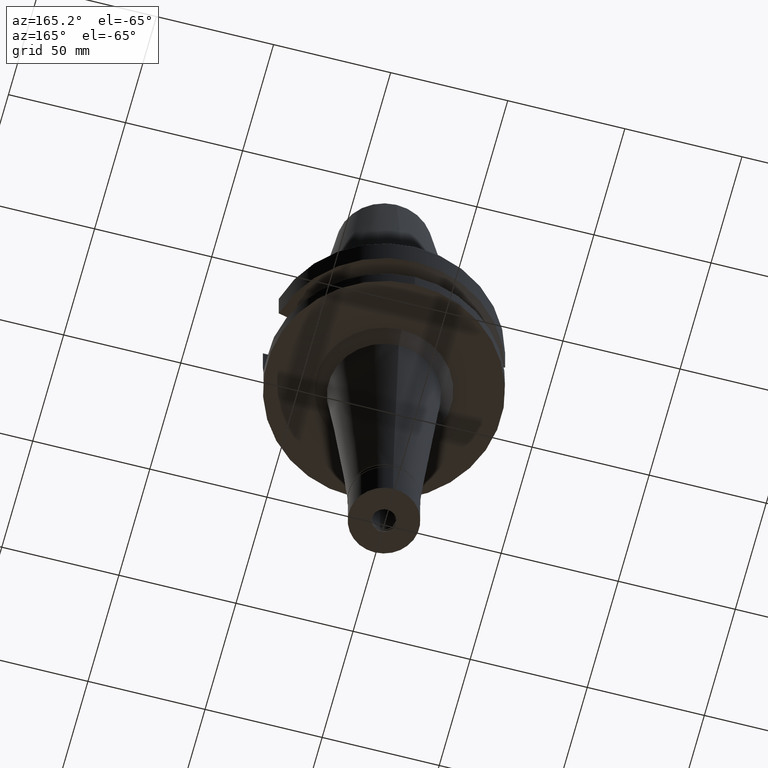
[diagram: clean part render]
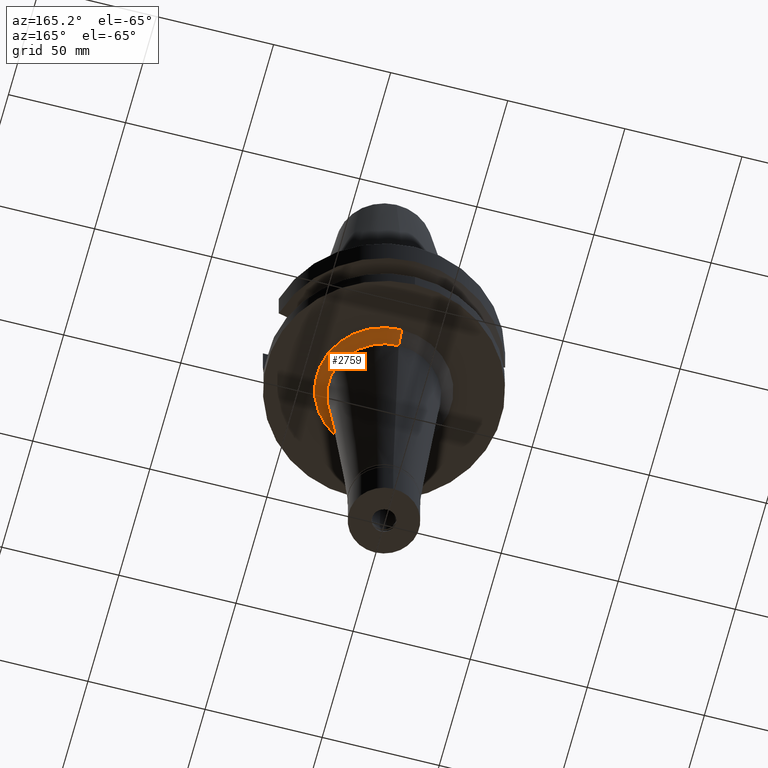
[diagram: same view with one face highlighted and labeled with its STEP entity id]
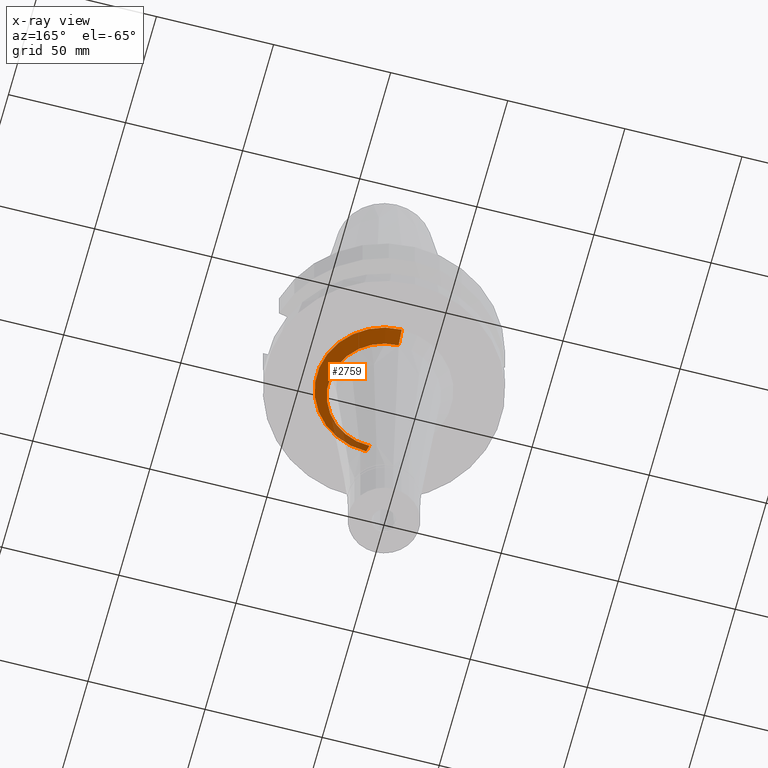
[diagram: x-ray of the same camera — body ghosted, the highlighted face saturated]
A machine part, auxiliary view. The second image highlights one B-rep face of the part: STEP entity #2759.
The next image is the same camera in x-ray: the body ghosted, the highlighted face saturated — about 12% of this face is hidden behind the body in this view.
In plain terms, the highlighted conical surface has half-angle 45 deg.
Its self-contained STEP definition (entity closure, byte-faithful):
#87 = CARTESIAN_POINT ( 'NONE',  ( 0.0000000000000000000, 0.0000000000000000000, -43.00000000000000000 ) ) ;
#96 = LINE ( 'NONE', #270, #727 ) ;
#178 = EDGE_CURVE ( 'NONE', #1222, #2098, #1956, .T. ) ;
#262 = EDGE_CURVE ( 'NONE', #1207, #1703, #96, .T. ) ;
#270 = CARTESIAN_POINT ( 'NONE',  ( 0.0000000000000000000, 28.67887542177000171, -38.00000000000000000 ) ) ;
#309 = CIRCLE ( 'NONE', #469, 28.67887542177000171 ) ;
#398 = CARTESIAN_POINT ( 'NONE',  ( 0.0000000000000000000, 23.67887542176999816, -43.00000000000000000 ) ) ;
#469 = AXIS2_PLACEMENT_3D ( 'NONE', #1114, #3123, #2093 ) ;
#470 = CARTESIAN_POINT ( 'NONE',  ( 0.0000000000000000000, 28.67887542177000171, -38.00000000000000000 ) ) ;
#473 = EDGE_CURVE ( 'NONE', #1207, #1222, #309, .T. ) ;
#704 = DIRECTION ( 'NONE',  ( 0.0000000000000000000, 1.000000000000000000, 0.0000000000000000000 ) ) ;
#713 = ORIENTED_EDGE ( 'NONE', *, *, #262, .F. ) ;
#727 = VECTOR ( 'NONE', #1309, 1000.000000000000114 ) ;
#807 = DIRECTION ( 'NONE',  ( 0.0000000000000000000, 0.0000000000000000000, 1.000000000000000000 ) ) ;
#976 = ORIENTED_EDGE ( 'NONE', *, *, #3133, .T. ) ;
#1114 = CARTESIAN_POINT ( 'NONE',  ( 0.0000000000000000000, 0.0000000000000000000, -38.00000000000000000 ) ) ;
#1161 = ORIENTED_EDGE ( 'NONE', *, *, #473, .T. ) ;
#1207 = VERTEX_POINT ( 'NONE', #470 ) ;
#1222 = VERTEX_POINT ( 'NONE', #1739 ) ;
#1309 = DIRECTION ( 'NONE',  ( 0.0000000000000000000, -0.7071067811862974395, -0.7071067811867974839 ) ) ;
#1327 = EDGE_LOOP ( 'NONE', ( #1161, #1479, #976, #713 ) ) ;
#1434 = AXIS2_PLACEMENT_3D ( 'NONE', #1757, #2959, #704 ) ;
#1479 = ORIENTED_EDGE ( 'NONE', *, *, #178, .T. ) ;
#1703 = VERTEX_POINT ( 'NONE', #398 ) ;
#1738 = CARTESIAN_POINT ( 'NONE',  ( 0.0000000000000000000, -28.67887542177000171, -38.00000000000000000 ) ) ;
#1739 = CARTESIAN_POINT ( 'NONE',  ( 0.0000000000000000000, -28.67887542177000171, -38.00000000000000000 ) ) ;
#1757 = CARTESIAN_POINT ( 'NONE',  ( 0.0000000000000000000, 0.0000000000000000000, -40.50000000000000000 ) ) ;
#1881 = CARTESIAN_POINT ( 'NONE',  ( 0.0000000000000000000, -23.67887542176999816, -43.00000000000000000 ) ) ;
#1902 = FACE_OUTER_BOUND ( 'NONE', #1327, .T. ) ;
#1956 = LINE ( 'NONE', #1738, #2430 ) ;
#2093 = DIRECTION ( 'NONE',  ( 0.0000000000000000000, 1.000000000000000000, 0.0000000000000000000 ) ) ;
#2098 = VERTEX_POINT ( 'NONE', #1881 ) ;
#2430 = VECTOR ( 'NONE', #2721, 1000.000000000000114 ) ;
#2506 = CIRCLE ( 'NONE', #2917, 23.67887542178000260 ) ;
#2544 = DIRECTION ( 'NONE',  ( 0.0000000000000000000, -1.000000000000000000, 0.0000000000000000000 ) ) ;
#2721 = DIRECTION ( 'NONE',  ( 0.0000000000000000000, 0.7071067811862974395, -0.7071067811867974839 ) ) ;
#2759 = ADVANCED_FACE ( 'NONE', ( #1902 ), #2810, .T. ) ;
#2810 = CONICAL_SURFACE ( 'NONE', #1434, 26.17887542176999816, 0.7853981633972997312 ) ;
#2917 = AXIS2_PLACEMENT_3D ( 'NONE', #87, #807, #2544 ) ;
#2959 = DIRECTION ( 'NONE',  ( 0.0000000000000000000, 0.0000000000000000000, 1.000000000000000000 ) ) ;
#3123 = DIRECTION ( 'NONE',  ( 0.0000000000000000000, 0.0000000000000000000, -1.000000000000000000 ) ) ;
#3133 = EDGE_CURVE ( 'NONE', #2098, #1703, #2506, .T. ) ;